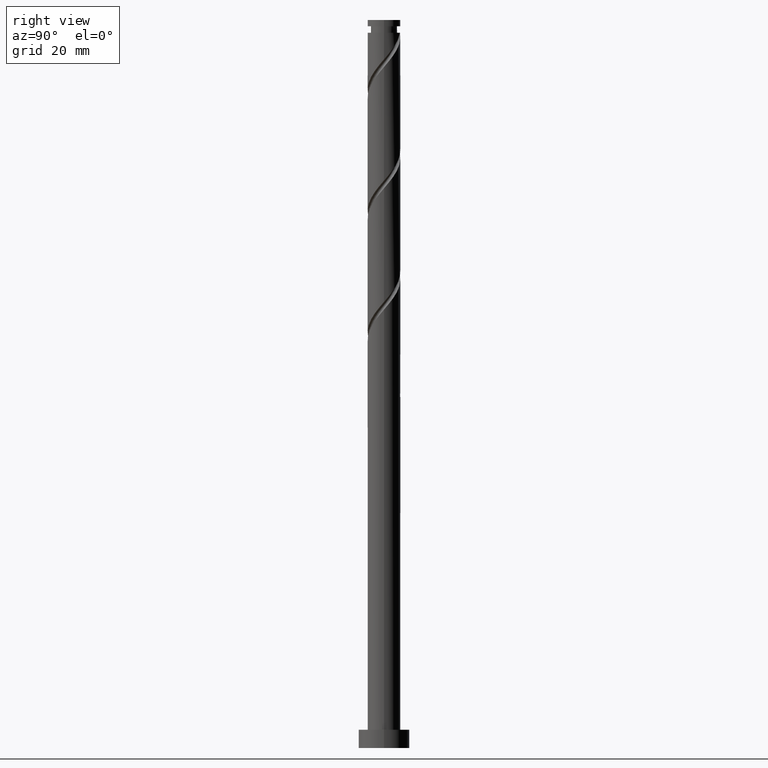
[diagram: clean part render]
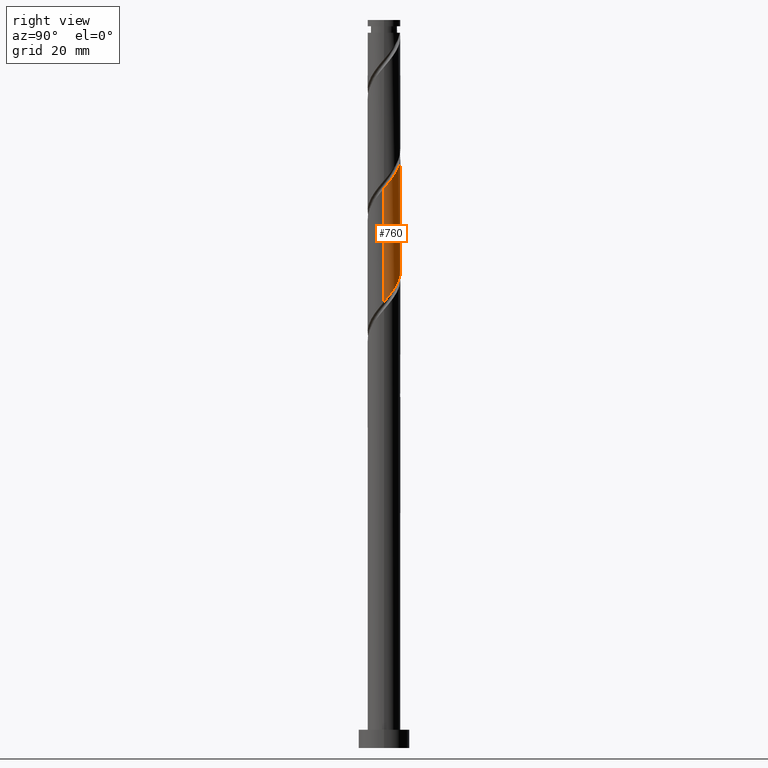
[diagram: same view with one face highlighted and labeled with its STEP entity id]
A machine part, right view. The second image highlights one B-rep face of the part: STEP entity #760.
In plain terms, the highlighted cylindrical surface (edge-blend (fillet) strip) has radius 4.5 mm, axis along (-0, -0, -1).
Its self-contained STEP definition (entity closure, byte-faithful):
#30 = LINE ( 'NONE', #180, #527 ) ;
#53 = DIRECTION ( 'NONE',  ( -0.000000000000000000, -0.000000000000000000, -1.000000000000000000 ) ) ;
#58 = CARTESIAN_POINT ( 'NONE',  ( -3.763820053866741677, 2.536659082249878683, 136.0840803741325828 ) ) ;
#95 = CARTESIAN_POINT ( 'NONE',  ( 4.266916377387353521, 1.429484042717362069, 124.2785248185770257 ) ) ;
#99 = CARTESIAN_POINT ( 'NONE',  ( -4.500000000000000888, 4.949702650838273832E-15, 139.2309803626759788 ) ) ;
#111 = CARTESIAN_POINT ( 'NONE',  ( 0.2764163328011116083, 4.491502422459643817, 161.7785248185770399 ) ) ;
#114 = CARTESIAN_POINT ( 'NONE',  ( 2.536659082249880903, 3.763820053866741677, 127.7507470407992827 ) ) ;
#120 = CARTESIAN_POINT ( 'NONE',  ( -2.536659082249880903, 3.763820053866747450, 165.2507470407993253 ) ) ;
#175 = LINE ( 'NONE', #188, #891 ) ;
#180 = CARTESIAN_POINT ( 'NONE',  ( -4.500000000000000000, 0.000000000000000000, 200.0000000000000000 ) ) ;
#188 = CARTESIAN_POINT ( 'NONE',  ( 4.500000000000000000, 5.510910596163088569E-16, 200.0000000000000000 ) ) ;
#216 = CARTESIAN_POINT ( 'NONE',  ( -2.485134777456511124, 3.751547032608838261, 134.0007470407992685 ) ) ;
#220 = CARTESIAN_POINT ( 'NONE',  ( 2.485134777456516453, 3.751547032608842702, 159.0007470407992685 ) ) ;
#259 = CARTESIAN_POINT ( 'NONE',  ( -4.455111521872428426, 0.8677338446377591552, 169.4174137074658972 ) ) ;
#273 = VERTEX_POINT ( 'NONE', #99 ) ;
#332 = CARTESIAN_POINT ( 'NONE',  ( -4.409999999999999254, 0.8954886933959590456, 138.1674137074659825 ) ) ;
#349 = CARTESIAN_POINT ( 'NONE',  ( -3.371427683991394808, 2.980515957282634076, 135.3896359296881542 ) ) ;
#366 = CARTESIAN_POINT ( 'NONE',  ( 2.979035314116056821, 3.424372832315393467, 158.3063025963548114 ) ) ;
#385 = VERTEX_POINT ( 'NONE', #400 ) ;
#400 = CARTESIAN_POINT ( 'NONE',  ( -4.500000000000006217, -1.241164108820464889E-15, 170.4371803855892438 ) ) ;
#404 = CARTESIAN_POINT ( 'NONE',  ( 4.078721232902287497, 1.991234240796970090, 124.9729692630214970 ) ) ;
#451 = DIRECTION ( 'NONE',  ( -0.000000000000000000, -0.000000000000000000, -1.000000000000000000 ) ) ;
#477 = CARTESIAN_POINT ( 'NONE',  ( -4.499999999999999112, 0.4522670168666489410, 138.6975539934867072 ) ) ;
#515 = CARTESIAN_POINT ( 'NONE',  ( -4.266916377387361514, 1.429484042717368952, 168.7229692630214970 ) ) ;
#517 = CARTESIAN_POINT ( 'NONE',  ( 4.500000000000000000, 6.474988664087530280E-15, 122.5643136960093216 ) ) ;
#526 = CARTESIAN_POINT ( 'NONE',  ( 4.292106676953157063, 1.476076207756374714, 155.5285248185770683 ) ) ;
#527 = VECTOR ( 'NONE', #1649, 1000.000000000000000 ) ;
#538 = CARTESIAN_POINT ( 'NONE',  ( 4.491502422459638488, 0.2764163328011046139, 122.8896359296881542 ) ) ;
#582 = ORIENTED_EDGE ( 'NONE', *, *, #1080, .F. ) ;
#599 = CARTESIAN_POINT ( 'NONE',  ( -4.500000000000001776, 4.949702650838273832E-15, 139.2309803626759788 ) ) ;
#607 = ORIENTED_EDGE ( 'NONE', *, *, #1364, .F. ) ;
#634 = CARTESIAN_POINT ( 'NONE',  ( 4.500000000000006217, -2.990756888724012433E-17, 153.7705137189225297 ) ) ;
#636 = EDGE_CURVE ( 'NONE', #1074, #1118, #175, .T. ) ;
#660 = CARTESIAN_POINT ( 'NONE',  ( -3.751547032608844479, 2.485134777456515565, 167.3340803741326397 ) ) ;
#668 = CARTESIAN_POINT ( 'NONE',  ( -3.424372832315396131, 2.979035314116054156, 166.6396359296881542 ) ) ;
#724 = CARTESIAN_POINT ( 'NONE',  ( 0.000000000000000000, 0.000000000000000000, 200.0000000000000000 ) ) ;
#732 = CARTESIAN_POINT ( 'NONE',  ( -4.292106676953148181, 1.476076207756375158, 137.4729692630215254 ) ) ;
#740 = CYLINDRICAL_SURFACE ( 'NONE', #1501, 4.500000000000000000 ) ;
#744 =( BOUNDED_CURVE ( )  B_SPLINE_CURVE ( 2, ( #938, #1195, #782, #526, #1202, #928, #1483, #366, #220, #1326, #1712, #1592, #111, #1576, #898, #1336, #1445, #120, #765, #668, #660, #1730, #515, #259, #1064, #1308, #1739 ),
 .UNSPECIFIED., .F., .T. ) 
 B_SPLINE_CURVE_WITH_KNOTS ( ( 3, 2, 2, 2, 2, 2, 2, 2, 2, 2, 2, 2, 2, 3 ),
 ( 0.4295317669814464057, 0.4375000000000000000, 0.4479166666666666297, 0.4583333333333333703, 0.4687500000000000000, 0.4791666666666666297, 0.4895833333333333703, 0.5000000000000000000, 0.5104166666666667407, 0.5208333333333332593, 0.5312500000000000000, 0.5416666666666667407, 0.5520833333333332593, 0.5545317669814461281 ),
 .UNSPECIFIED. ) 
 CURVE ( )  GEOMETRIC_REPRESENTATION_ITEM ( )  RATIONAL_B_SPLINE_CURVE ( ( 0.9062941362546457214, 0.9031415850403503587, 0.9090909090909256030, 0.9013135103398440817, 0.9090909090909256030, 0.9013135103398440817, 0.9090909090909256030, 0.9013135103398440817, 0.9090909090909256030, 0.9013135103398440817, 0.9090909090909256030, 0.9013135103398440817, 0.9090909090909256030, 0.9013135103398440817, 0.9090909090909256030, 0.9013135103398440817, 0.9090909090909256030, 0.9013135103398440817, 0.9090909090909256030, 0.9013135103398440817, 0.9090909090909256030, 0.9013135103398440817, 0.9090909090909256030, 0.9013135103398440817, 0.9090909090909256030, 0.9072628343904194370, 0.9062941362546460544 ) ) 
 REPRESENTATION_ITEM ( '' )  );
#760 = ADVANCED_FACE ( 'NONE', ( #1685 ), #740, .T. ) ;
#761 = CARTESIAN_POINT ( 'NONE',  ( 1.476076207756378933, 4.292106676953146405, 129.1396359296881542 ) ) ;
#765 = CARTESIAN_POINT ( 'NONE',  ( -2.980515957282638073, 3.371427683991401025, 165.9451914852436971 ) ) ;
#782 = CARTESIAN_POINT ( 'NONE',  ( 4.410000000000008136, 0.8954886933959588236, 154.8340803741326681 ) ) ;
#874 = CARTESIAN_POINT ( 'NONE',  ( -1.991234240796973642, 4.078721232902286609, 133.3063025963548114 ) ) ;
#891 = VECTOR ( 'NONE', #451, 1000.000000000000000 ) ;
#898 = CARTESIAN_POINT ( 'NONE',  ( -0.8954886933959587125, 4.410000000000008136, 163.1674137074659541 ) ) ;
#911 = EDGE_LOOP ( 'NONE', ( #1359, #1312, #582, #607 ) ) ;
#928 = CARTESIAN_POINT ( 'NONE',  ( 3.763820053866749227, 2.536659082249878683, 156.9174137074659257 ) ) ;
#938 = CARTESIAN_POINT ( 'NONE',  ( 4.500000000000006217, -2.990756888724012433E-17, 153.7705137189225297 ) ) ;
#998 = DIRECTION ( 'NONE',  ( -1.000000000000000000, 0.000000000000000000, 0.000000000000000000 ) ) ;
#1006 = CARTESIAN_POINT ( 'NONE',  ( -0.2764163328011065568, 4.491502422459638488, 131.2229692630214686 ) ) ;
#1029 = CARTESIAN_POINT ( 'NONE',  ( -4.027963365409944707, 2.006367645003127365, 136.7785248185769831 ) ) ;
#1064 = CARTESIAN_POINT ( 'NONE',  ( -4.491502422459643817, 0.2764163328011088883, 170.1118581519104396 ) ) ;
#1074 = VERTEX_POINT ( 'NONE', #634 ) ;
#1080 = EDGE_CURVE ( 'NONE', #273, #1118, #1178, .T. ) ;
#1118 = VERTEX_POINT ( 'NONE', #517 ) ;
#1150 = CARTESIAN_POINT ( 'NONE',  ( 0.8954886933959598228, 4.409999999999999254, 129.8340803741325828 ) ) ;
#1178 =( BOUNDED_CURVE ( )  B_SPLINE_CURVE ( 2, ( #599, #477, #332, #732, #1029, #58, #349, #1284, #216, #874, #1425, #1269, #1006, #1418, #1150, #761, #1707, #114, #1213, #1487, #1741, #404, #95, #1465, #538, #1311, #1620 ),
 .UNSPECIFIED., .F., .T. ) 
 B_SPLINE_CURVE_WITH_KNOTS ( ( 3, 2, 2, 2, 2, 2, 2, 2, 2, 2, 2, 2, 2, 3 ),
 ( 0.6795317669814463502, 0.6875000000000000000, 0.6979166666666666297, 0.7083333333333333703, 0.7187500000000000000, 0.7291666666666666297, 0.7395833333333333703, 0.7500000000000000000, 0.7604166666666666297, 0.7708333333333333703, 0.7812500000000000000, 0.7916666666666666297, 0.8020833333333333703, 0.8045317669814462391 ),
 .UNSPECIFIED. ) 
 CURVE ( )  GEOMETRIC_REPRESENTATION_ITEM ( )  RATIONAL_B_SPLINE_CURVE ( ( 0.9062941362546397261, 0.9031415850403440304, 0.9090909090909194967, 0.9013135103398377534, 0.9090909090909194967, 0.9013135103398377534, 0.9090909090909194967, 0.9013135103398377534, 0.9090909090909194967, 0.9013135103398377534, 0.9090909090909194967, 0.9013135103398377534, 0.9090909090909194967, 0.9013135103398377534, 0.9090909090909194967, 0.9013135103398377534, 0.9090909090909194967, 0.9013135103398377534, 0.9090909090909194967, 0.9013135103398377534, 0.9090909090909194967, 0.9013135103398377534, 0.9090909090909194967, 0.9013135103398377534, 0.9090909090909194967, 0.9072628343904132198, 0.9062941362546398372 ) ) 
 REPRESENTATION_ITEM ( '' )  );
#1195 = CARTESIAN_POINT ( 'NONE',  ( 4.500000000000006217, 0.4522670168666478308, 154.3039400881118297 ) ) ;
#1202 = CARTESIAN_POINT ( 'NONE',  ( 4.027963365409952701, 2.006367645003126920, 156.2229692630214686 ) ) ;
#1213 = CARTESIAN_POINT ( 'NONE',  ( 2.980515957282635853, 3.371427683991394364, 127.0563025963548114 ) ) ;
#1269 = CARTESIAN_POINT ( 'NONE',  ( -0.8677338446377570458, 4.455111521872423097, 131.9174137074659257 ) ) ;
#1284 = CARTESIAN_POINT ( 'NONE',  ( -2.979035314116047939, 3.424372832315392579, 134.6951914852437255 ) ) ;
#1308 = CARTESIAN_POINT ( 'NONE',  ( -4.500000000000005329, 0.1383387824595373738, 170.2740166975611089 ) ) ;
#1311 = CARTESIAN_POINT ( 'NONE',  ( 4.500000000000000000, 0.1383387824595321280, 122.7274773840374706 ) ) ;
#1312 = ORIENTED_EDGE ( 'NONE', *, *, #636, .T. ) ;
#1326 = CARTESIAN_POINT ( 'NONE',  ( 1.991234240796978749, 4.078721232902290161, 159.6951914852436971 ) ) ;
#1336 = CARTESIAN_POINT ( 'NONE',  ( -1.476076207756376046, 4.292106676953155286, 163.8618581519103543 ) ) ;
#1359 = ORIENTED_EDGE ( 'NONE', *, *, #1720, .F. ) ;
#1364 = EDGE_CURVE ( 'NONE', #385, #273, #30, .T. ) ;
#1418 = CARTESIAN_POINT ( 'NONE',  ( 0.3149011790355433216, 4.527893323046852991, 130.5285248185770399 ) ) ;
#1425 = CARTESIAN_POINT ( 'NONE',  ( -1.429484042717364511, 4.266916377387353521, 132.6118581519103543 ) ) ;
#1445 = CARTESIAN_POINT ( 'NONE',  ( -2.006367645003128697, 4.027963365409951813, 164.5563025963548682 ) ) ;
#1465 = CARTESIAN_POINT ( 'NONE',  ( 4.455111521872423985, 0.8677338446377541592, 123.5840803741326255 ) ) ;
#1483 = CARTESIAN_POINT ( 'NONE',  ( 3.371427683991403690, 2.980515957282635409, 157.6118581519103827 ) ) ;
#1487 = CARTESIAN_POINT ( 'NONE',  ( 3.424372832315393911, 2.979035314116047495, 126.3618581519103685 ) ) ;
#1501 = AXIS2_PLACEMENT_3D ( 'NONE', #724, #53, #998 ) ;
#1576 = CARTESIAN_POINT ( 'NONE',  ( -0.3149011790355383811, 4.527893323046858320, 162.4729692630214970 ) ) ;
#1592 = CARTESIAN_POINT ( 'NONE',  ( 0.8677338446377617087, 4.455111521872428426, 161.0840803741326113 ) ) ;
#1620 = CARTESIAN_POINT ( 'NONE',  ( 4.500000000000000000, 6.474988664087530280E-15, 122.5643136960093216 ) ) ;
#1649 = DIRECTION ( 'NONE',  ( -0.000000000000000000, -0.000000000000000000, -1.000000000000000000 ) ) ;
#1685 = FACE_OUTER_BOUND ( 'NONE', #911, .T. ) ;
#1707 = CARTESIAN_POINT ( 'NONE',  ( 2.006367645003129585, 4.027963365409942931, 128.4451914852436971 ) ) ;
#1712 = CARTESIAN_POINT ( 'NONE',  ( 1.429484042717370507, 4.266916377387359738, 160.3896359296881258 ) ) ;
#1720 = EDGE_CURVE ( 'NONE', #1074, #385, #744, .T. ) ;
#1730 = CARTESIAN_POINT ( 'NONE',  ( -4.078721232902291050, 1.991234240796977639, 168.0285248185770399 ) ) ;
#1739 = CARTESIAN_POINT ( 'NONE',  ( -4.500000000000006217, -1.241164108820464691E-15, 170.4371803855892438 ) ) ;
#1741 = CARTESIAN_POINT ( 'NONE',  ( 3.751547032608838261, 2.485134777456509347, 125.6674137074659257 ) ) ;